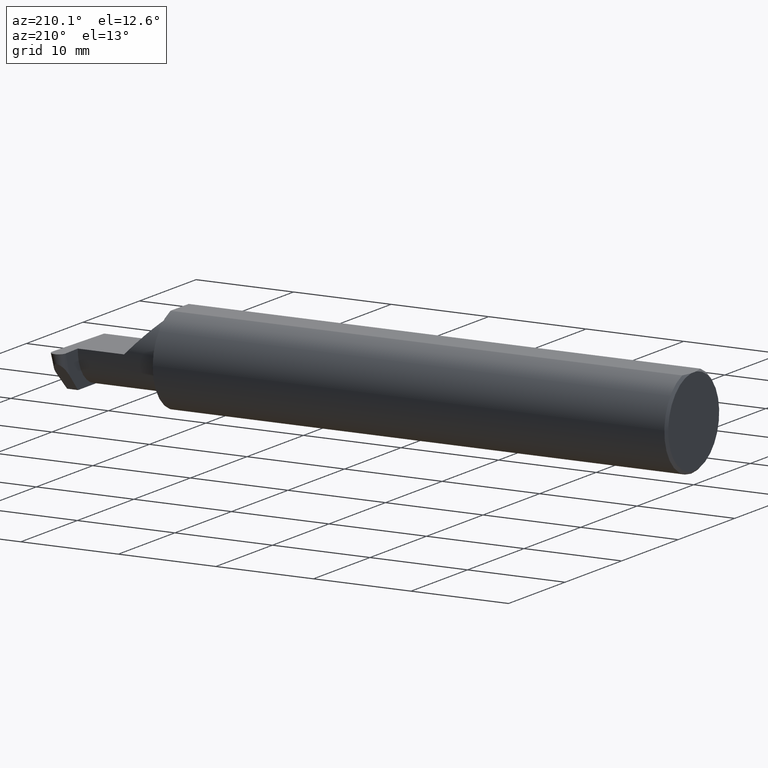
[diagram: clean part render]
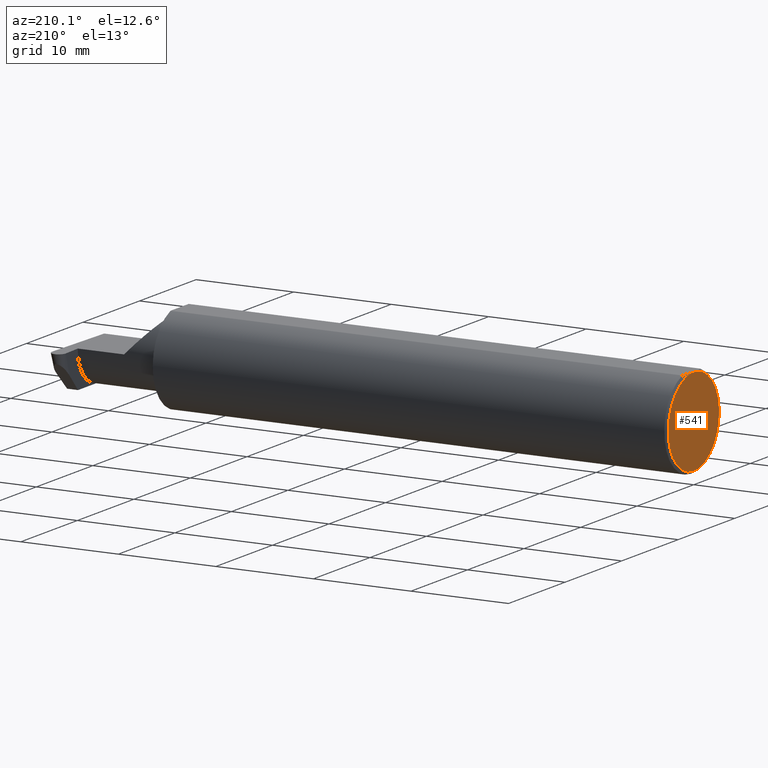
[diagram: same view with one face highlighted and labeled with its STEP entity id]
A machine part, auxiliary view. The second image highlights one B-rep face of the part: STEP entity #541.
In plain terms, the highlighted planar face has unit normal (1, 0, 0).
Its self-contained STEP definition (entity closure, byte-faithful):
#40 = PLANE ( 'NONE',  #277 ) ;
#47 = EDGE_CURVE ( 'NONE', #689, #255, #680, .T. ) ;
#52 = DIRECTION ( 'NONE',  ( 0.000000000000000000, 0.000000000000000000, -1.000000000000000000 ) ) ;
#62 = CARTESIAN_POINT ( 'NONE',  ( 0.000000000000000000, -0.01880691362239451242, 0.1763499999999999235 ) ) ;
#63 = CARTESIAN_POINT ( 'NONE',  ( 0.000000000000000000, 0.000000000000000000, 0.000000000000000000 ) ) ;
#98 = AXIS2_PLACEMENT_3D ( 'NONE', #63, #183, #362 ) ;
#157 = FACE_OUTER_BOUND ( 'NONE', #775, .T. ) ;
#183 = DIRECTION ( 'NONE',  ( -1.000000000000000000, -0.000000000000000000, -0.000000000000000000 ) ) ;
#240 = ORIENTED_EDGE ( 'NONE', *, *, #549, .T. ) ;
#248 = VECTOR ( 'NONE', #535, 39.37007874015748143 ) ;
#255 = VERTEX_POINT ( 'NONE', #62 ) ;
#275 = AXIS2_PLACEMENT_3D ( 'NONE', #738, #611, #52 ) ;
#277 = AXIS2_PLACEMENT_3D ( 'NONE', #592, #715, #280 ) ;
#280 = DIRECTION ( 'NONE',  ( 0.000000000000000000, 0.000000000000000000, -1.000000000000000000 ) ) ;
#284 = LINE ( 'NONE', #605, #248 ) ;
#362 = DIRECTION ( 'NONE',  ( 0.000000000000000000, 0.000000000000000000, -1.000000000000000000 ) ) ;
#368 = ORIENTED_EDGE ( 'NONE', *, *, #610, .T. ) ;
#482 = CARTESIAN_POINT ( 'NONE',  ( 0.000000000000000000, 0.000000000000000000, -0.1773500000000005072 ) ) ;
#535 = DIRECTION ( 'NONE',  ( -0.000000000000000000, 1.000000000000000000, -0.000000000000000000 ) ) ;
#537 = VERTEX_POINT ( 'NONE', #602 ) ;
#541 = ADVANCED_FACE ( 'NONE', ( #157 ), #40, .F. ) ;
#549 = EDGE_CURVE ( 'NONE', #255, #537, #284, .T. ) ;
#592 = CARTESIAN_POINT ( 'NONE',  ( 0.000000000000000000, 0.000000000000000000, 0.000000000000000000 ) ) ;
#602 = CARTESIAN_POINT ( 'NONE',  ( 0.000000000000000000, 0.01880691362239451242, 0.1763499999999999235 ) ) ;
#605 = CARTESIAN_POINT ( 'NONE',  ( 0.000000000000000000, 0.1873499999999998500, 0.1763499999999999235 ) ) ;
#610 = EDGE_CURVE ( 'NONE', #537, #689, #671, .T. ) ;
#611 = DIRECTION ( 'NONE',  ( -1.000000000000000000, -0.000000000000000000, -0.000000000000000000 ) ) ;
#671 = CIRCLE ( 'NONE', #98, 0.1773500000000005072 ) ;
#680 = CIRCLE ( 'NONE', #275, 0.1773500000000005072 ) ;
#689 = VERTEX_POINT ( 'NONE', #482 ) ;
#715 = DIRECTION ( 'NONE',  ( 1.000000000000000000, 0.000000000000000000, 0.000000000000000000 ) ) ;
#738 = CARTESIAN_POINT ( 'NONE',  ( 0.000000000000000000, 0.000000000000000000, 0.000000000000000000 ) ) ;
#746 = ORIENTED_EDGE ( 'NONE', *, *, #47, .T. ) ;
#775 = EDGE_LOOP ( 'NONE', ( #240, #368, #746 ) ) ;